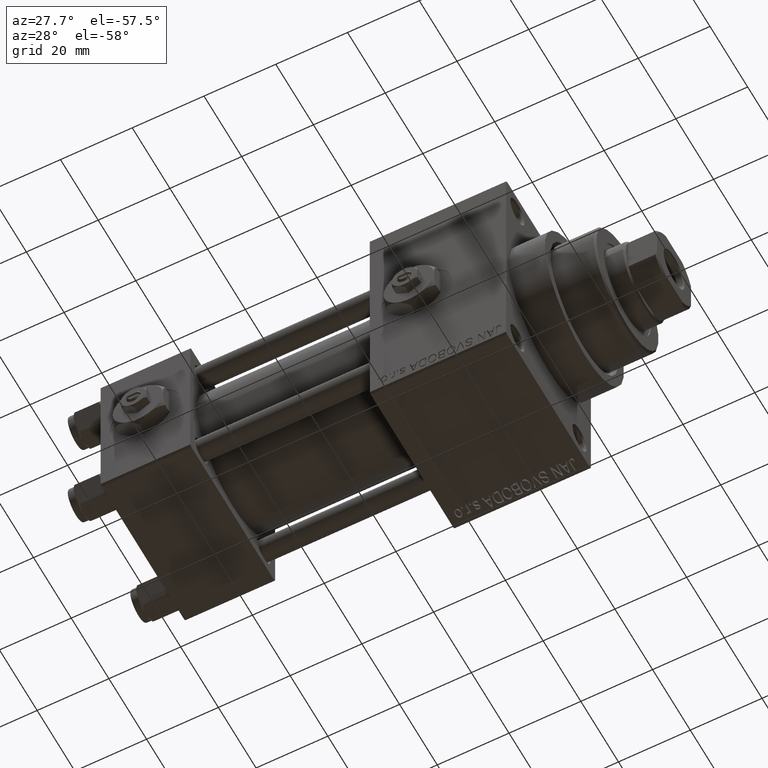
[diagram: clean part render]
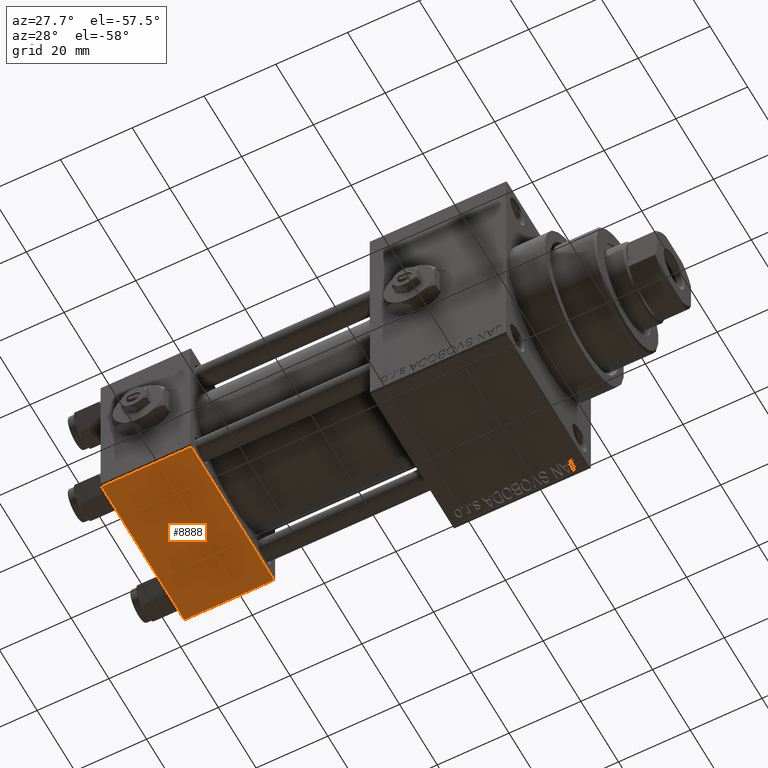
[diagram: same view with one face highlighted and labeled with its STEP entity id]
A machine part, auxiliary view. The second image highlights one B-rep face of the part: STEP entity #8888.
In plain terms, the highlighted planar face has unit normal (0, 0, -1).
Its self-contained STEP definition (entity closure, byte-faithful):
#2394 = LINE ( 'NONE', #10076, #33745 ) ;
#2691 = ORIENTED_EDGE ( 'NONE', *, *, #16701, .T. ) ;
#5867 = VECTOR ( 'NONE', #6641, 1000.000000000000000 ) ;
#6641 = DIRECTION ( 'NONE',  ( -1.000000000000000000, 0.000000000000000000, 0.000000000000000000 ) ) ;
#7928 = ORIENTED_EDGE ( 'NONE', *, *, #23888, .T. ) ;
#8290 = ORIENTED_EDGE ( 'NONE', *, *, #36288, .T. ) ;
#8399 = LINE ( 'NONE', #46886, #26591 ) ;
#8528 = ORIENTED_EDGE ( 'NONE', *, *, #36453, .F. ) ;
#8888 = ADVANCED_FACE ( 'NONE', ( #26446 ), #19488, .T. ) ;
#9589 = VECTOR ( 'NONE', #28423, 1000.000000000000000 ) ;
#10076 = CARTESIAN_POINT ( 'NONE',  ( 0.000000000000000000, 22.50000000000000000, -22.49999999999999645 ) ) ;
#10245 = CARTESIAN_POINT ( 'NONE',  ( 25.00000000000000000, 22.50000000000000000, -22.49999999999999645 ) ) ;
#16701 = EDGE_CURVE ( 'NONE', #28978, #46216, #28892, .T. ) ;
#19488 = PLANE ( 'NONE',  #48318 ) ;
#20082 = CARTESIAN_POINT ( 'NONE',  ( 0.000000000000000000, 21.99999999999999289, -22.49999999999999645 ) ) ;
#21154 = CARTESIAN_POINT ( 'NONE',  ( 0.000000000000000000, -21.99999999999997158, -22.50000000000000711 ) ) ;
#23888 = EDGE_CURVE ( 'NONE', #46216, #28405, #33949, .T. ) ;
#25331 = VERTEX_POINT ( 'NONE', #20082 ) ;
#26446 = FACE_OUTER_BOUND ( 'NONE', #42147, .T. ) ;
#26591 = VECTOR ( 'NONE', #38683, 1000.000000000000000 ) ;
#28405 = VERTEX_POINT ( 'NONE', #21154 ) ;
#28423 = DIRECTION ( 'NONE',  ( 0.000000000000000000, -1.000000000000000000, -2.312964634635742957E-16 ) ) ;
#28892 = LINE ( 'NONE', #10245, #9589 ) ;
#28978 = VERTEX_POINT ( 'NONE', #34908 ) ;
#29363 = CARTESIAN_POINT ( 'NONE',  ( 25.00000000000000000, -21.99999999999997158, -22.50000000000000711 ) ) ;
#30244 = CARTESIAN_POINT ( 'NONE',  ( 0.000000000000000000, -21.99999999999998579, -22.50000000000000711 ) ) ;
#33745 = VECTOR ( 'NONE', #40406, 1000.000000000000000 ) ;
#33949 = LINE ( 'NONE', #30244, #5867 ) ;
#34877 = CARTESIAN_POINT ( 'NONE',  ( 25.00000000000000000, 22.50000000000000000, -22.49999999999999645 ) ) ;
#34908 = CARTESIAN_POINT ( 'NONE',  ( 25.00000000000000000, 21.99999999999999289, -22.49999999999999645 ) ) ;
#36288 = EDGE_CURVE ( 'NONE', #25331, #28978, #8399, .T. ) ;
#36453 = EDGE_CURVE ( 'NONE', #25331, #28405, #2394, .T. ) ;
#38683 = DIRECTION ( 'NONE',  ( 1.000000000000000000, 0.000000000000000000, 0.000000000000000000 ) ) ;
#40406 = DIRECTION ( 'NONE',  ( 0.000000000000000000, -1.000000000000000000, -2.312964634635742957E-16 ) ) ;
#42106 = DIRECTION ( 'NONE',  ( 0.000000000000000000, 1.000000000000000000, 2.312964634635742957E-16 ) ) ;
#42147 = EDGE_LOOP ( 'NONE', ( #8528, #8290, #2691, #7928 ) ) ;
#45577 = DIRECTION ( 'NONE',  ( 0.000000000000000000, 2.312964634635742957E-16, -1.000000000000000000 ) ) ;
#46216 = VERTEX_POINT ( 'NONE', #29363 ) ;
#46886 = CARTESIAN_POINT ( 'NONE',  ( 25.00000000000000000, 21.99999999999999289, -22.49999999999999645 ) ) ;
#48318 = AXIS2_PLACEMENT_3D ( 'NONE', #34877, #45577, #42106 ) ;